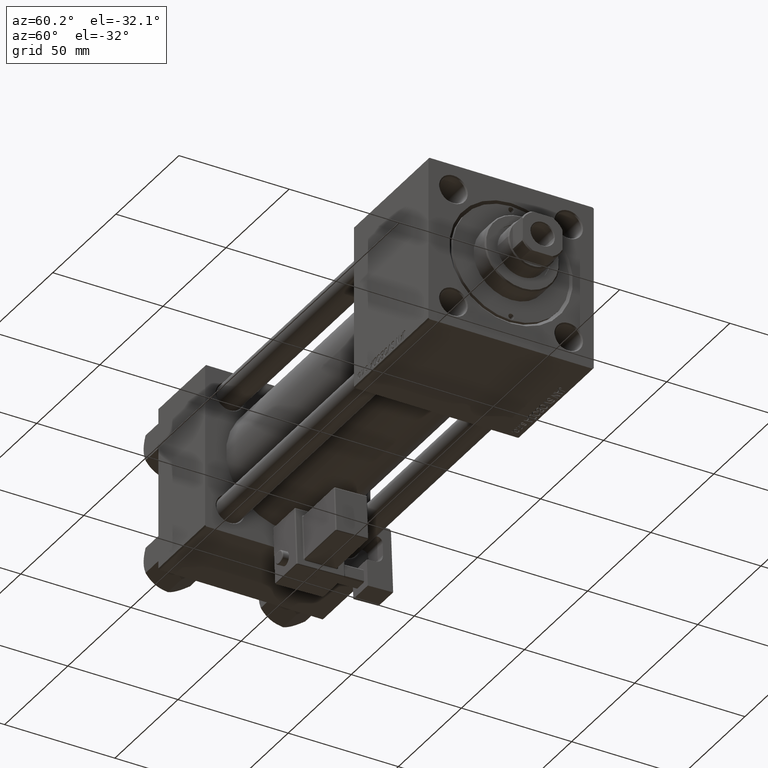
[diagram: clean part render]
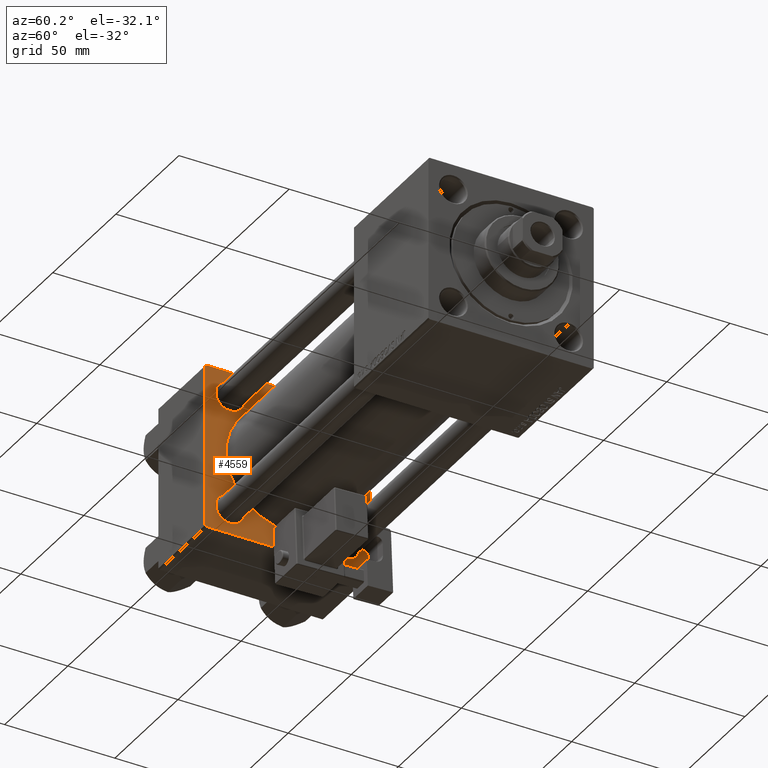
[diagram: same view with one face highlighted and labeled with its STEP entity id]
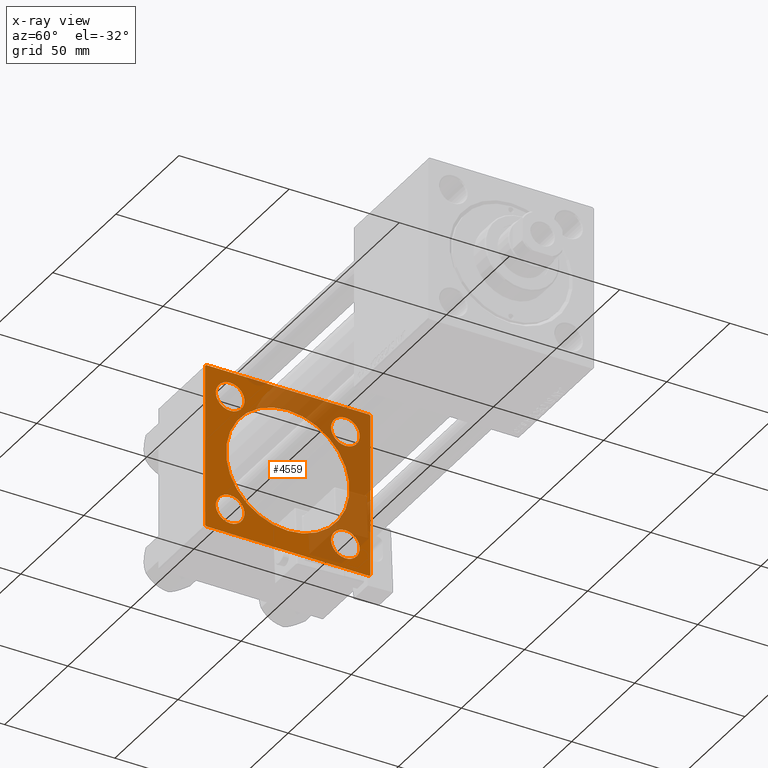
[diagram: x-ray of the same camera — body ghosted, the highlighted face saturated]
A machine part, auxiliary view. The second image highlights one B-rep face of the part: STEP entity #4559.
The next image is the same camera in x-ray: the body ghosted, the highlighted face saturated — about 45% of this face is hidden behind the body in this view.
In plain terms, the highlighted planar face has unit normal (-1, 0, 0).
Its self-contained STEP definition (entity closure, byte-faithful):
#22 = VECTOR ( 'NONE', #28432, 1000.000000000000000 ) ;
#113 = AXIS2_PLACEMENT_3D ( 'NONE', #46167, #33942, #17231 ) ;
#232 = AXIS2_PLACEMENT_3D ( 'NONE', #36494, #48733, #17365 ) ;
#714 = AXIS2_PLACEMENT_3D ( 'NONE', #33107, #45345, #29650 ) ;
#1017 = CARTESIAN_POINT ( 'NONE',  ( 37.00000000000000000, 26.14999999999999858, 19.64999999999999858 ) ) ;
#1268 = DIRECTION ( 'NONE',  ( 0.000000000000000000, 0.7071067811865524577, -0.7071067811865426878 ) ) ;
#1364 = EDGE_CURVE ( 'NONE', #38184, #28137, #29414, .T. ) ;
#1747 = FACE_BOUND ( 'NONE', #47062, .T. ) ;
#2583 = VERTEX_POINT ( 'NONE', #11659 ) ;
#2702 = DIRECTION ( 'NONE',  ( -1.000000000000000000, 0.000000000000000000, -0.000000000000000000 ) ) ;
#2709 = DIRECTION ( 'NONE',  ( -0.000000000000000000, -0.7071067811865474617, -0.7071067811865474617 ) ) ;
#2810 = VERTEX_POINT ( 'NONE', #1017 ) ;
#4559 = ADVANCED_FACE ( 'NONE', ( #29910, #34156, #38149, #1747, #33895, #13185 ), #17187, .F. ) ;
#4886 = VERTEX_POINT ( 'NONE', #11542 ) ;
#4892 = ORIENTED_EDGE ( 'NONE', *, *, #51193, .T. ) ;
#5143 = CARTESIAN_POINT ( 'NONE',  ( 37.00000000000000000, -26.14999999999999147, -26.15000000000000924 ) ) ;
#5972 = CARTESIAN_POINT ( 'NONE',  ( 37.00000000000000000, 37.49999999999999289, -37.50000000000000000 ) ) ;
#5973 = CARTESIAN_POINT ( 'NONE',  ( 37.00000000000000000, -26.14999999999999147, -19.65000000000000924 ) ) ;
#6211 = ORIENTED_EDGE ( 'NONE', *, *, #10772, .T. ) ;
#6346 = VERTEX_POINT ( 'NONE', #40910 ) ;
#6504 = DIRECTION ( 'NONE',  ( -1.000000000000000000, 0.000000000000000000, -0.000000000000000000 ) ) ;
#6531 = AXIS2_PLACEMENT_3D ( 'NONE', #43880, #34840, #14660 ) ;
#8171 = CARTESIAN_POINT ( 'NONE',  ( 37.00000000000000000, -37.00000000000002132, -37.50000000000000711 ) ) ;
#9440 = DIRECTION ( 'NONE',  ( -1.000000000000000000, 0.000000000000000000, -0.000000000000000000 ) ) ;
#9741 = ORIENTED_EDGE ( 'NONE', *, *, #33794, .T. ) ;
#9765 = CIRCLE ( 'NONE', #13138, 28.00000000000000000 ) ;
#9839 = EDGE_CURVE ( 'NONE', #6346, #2810, #42359, .T. ) ;
#9966 = DIRECTION ( 'NONE',  ( 0.000000000000000000, 0.000000000000000000, 1.000000000000000000 ) ) ;
#10597 = ORIENTED_EDGE ( 'NONE', *, *, #22348, .F. ) ;
#10772 = EDGE_CURVE ( 'NONE', #14878, #38836, #22860, .T. ) ;
#11098 = ORIENTED_EDGE ( 'NONE', *, *, #12867, .F. ) ;
#11178 = VECTOR ( 'NONE', #2709, 1000.000000000000114 ) ;
#11518 = EDGE_LOOP ( 'NONE', ( #4892, #6211 ) ) ;
#11542 = CARTESIAN_POINT ( 'NONE',  ( 37.00000000000000711, 8.269258236473784371E-16, -28.00000000000000000 ) ) ;
#11559 = VERTEX_POINT ( 'NONE', #14339 ) ;
#11646 = CARTESIAN_POINT ( 'NONE',  ( 37.00000000000000000, -37.50000000000000711, 37.49999999999999289 ) ) ;
#11659 = CARTESIAN_POINT ( 'NONE',  ( 37.00000000000000000, -37.50000000000000000, -37.00000000000003553 ) ) ;
#12867 = EDGE_CURVE ( 'NONE', #31422, #26131, #49689, .T. ) ;
#13109 = DIRECTION ( 'NONE',  ( -1.000000000000000000, 0.000000000000000000, -0.000000000000000000 ) ) ;
#13138 = AXIS2_PLACEMENT_3D ( 'NONE', #17461, #33917, #42165 ) ;
#13185 = FACE_OUTER_BOUND ( 'NONE', #22123, .T. ) ;
#13229 = LINE ( 'NONE', #20691, #51874 ) ;
#13279 = CARTESIAN_POINT ( 'NONE',  ( 37.00000000000000000, 37.49999999999999289, 37.50000000000000000 ) ) ;
#13411 = VECTOR ( 'NONE', #46243, 1000.000000000000114 ) ;
#13983 = DIRECTION ( 'NONE',  ( 0.000000000000000000, 0.000000000000000000, 1.000000000000000000 ) ) ;
#14125 = EDGE_CURVE ( 'NONE', #2583, #27314, #13229, .T. ) ;
#14339 = CARTESIAN_POINT ( 'NONE',  ( 37.00000000000000711, -2.602085213965210642E-15, 28.00000000000000000 ) ) ;
#14522 = DIRECTION ( 'NONE',  ( 0.000000000000000000, 0.000000000000000000, 1.000000000000000000 ) ) ;
#14660 = DIRECTION ( 'NONE',  ( 0.000000000000000000, 0.000000000000000000, 1.000000000000000000 ) ) ;
#14878 = VERTEX_POINT ( 'NONE', #17109 ) ;
#15253 = DIRECTION ( 'NONE',  ( 0.000000000000000000, 0.000000000000000000, 1.000000000000000000 ) ) ;
#16352 = CIRCLE ( 'NONE', #232, 6.500000000000008882 ) ;
#16432 = ORIENTED_EDGE ( 'NONE', *, *, #24050, .T. ) ;
#16644 = DIRECTION ( 'NONE',  ( 0.000000000000000000, -1.000000000000000000, -9.251858538542971581E-17 ) ) ;
#16991 = CIRCLE ( 'NONE', #48396, 6.500000000000002665 ) ;
#17109 = CARTESIAN_POINT ( 'NONE',  ( 37.00000000000000000, 26.14999999999999858, -19.65000000000000213 ) ) ;
#17187 = PLANE ( 'NONE',  #714 ) ;
#17231 = DIRECTION ( 'NONE',  ( 0.000000000000000000, 0.000000000000000000, 1.000000000000000000 ) ) ;
#17365 = DIRECTION ( 'NONE',  ( 0.000000000000000000, 0.000000000000000000, 1.000000000000000000 ) ) ;
#17461 = CARTESIAN_POINT ( 'NONE',  ( 37.00000000000000711, -2.602085213965210642E-15, 0.000000000000000000 ) ) ;
#17902 = ORIENTED_EDGE ( 'NONE', *, *, #23484, .T. ) ;
#18389 = ORIENTED_EDGE ( 'NONE', *, *, #1364, .T. ) ;
#18872 = CARTESIAN_POINT ( 'NONE',  ( 37.00000000000000000, -26.14999999999999147, -32.65000000000001279 ) ) ;
#19553 = VERTEX_POINT ( 'NONE', #21631 ) ;
#19556 = CARTESIAN_POINT ( 'NONE',  ( 37.00000000000000000, 26.14999999999999858, -26.15000000000000213 ) ) ;
#20691 = CARTESIAN_POINT ( 'NONE',  ( 37.00000000000000000, -37.00000000000002132, -37.50000000000000711 ) ) ;
#21111 = ORIENTED_EDGE ( 'NONE', *, *, #42222, .T. ) ;
#21631 = CARTESIAN_POINT ( 'NONE',  ( 37.00000000000000000, 36.99999999999999289, 37.50000000000000000 ) ) ;
#21634 = CARTESIAN_POINT ( 'NONE',  ( 37.00000000000000000, 36.99999999999999289, 37.50000000000000000 ) ) ;
#21772 = ORIENTED_EDGE ( 'NONE', *, *, #41795, .T. ) ;
#21904 = DIRECTION ( 'NONE',  ( 0.000000000000000000, -0.7071067811865474617, 0.7071067811865474617 ) ) ;
#21957 = ORIENTED_EDGE ( 'NONE', *, *, #23021, .T. ) ;
#22123 = EDGE_LOOP ( 'NONE', ( #31321, #21111, #11098, #32848, #17902, #16432, #38267, #41884 ) ) ;
#22333 = LINE ( 'NONE', #30556, #13411 ) ;
#22348 = EDGE_CURVE ( 'NONE', #11559, #4886, #39260, .T. ) ;
#22860 = CIRCLE ( 'NONE', #39860, 6.500000000000002665 ) ;
#22901 = DIRECTION ( 'NONE',  ( 0.000000000000000000, 0.000000000000000000, 1.000000000000000000 ) ) ;
#23021 = EDGE_CURVE ( 'NONE', #28137, #38184, #16352, .T. ) ;
#23484 = EDGE_CURVE ( 'NONE', #19553, #27293, #46108, .T. ) ;
#24050 = EDGE_CURVE ( 'NONE', #27293, #43942, #30864, .T. ) ;
#24527 = CARTESIAN_POINT ( 'NONE',  ( 37.00000000000000000, 26.14999999999999858, -32.65000000000000568 ) ) ;
#25014 = CARTESIAN_POINT ( 'NONE',  ( 37.00000000000000000, -37.50000000000000711, 36.99999999999999289 ) ) ;
#25786 = VECTOR ( 'NONE', #27851, 1000.000000000000000 ) ;
#26131 = VERTEX_POINT ( 'NONE', #30501 ) ;
#27293 = VERTEX_POINT ( 'NONE', #41633 ) ;
#27314 = VERTEX_POINT ( 'NONE', #8171 ) ;
#27851 = DIRECTION ( 'NONE',  ( 0.000000000000000000, 9.251858538542971581E-17, -1.000000000000000000 ) ) ;
#28137 = VERTEX_POINT ( 'NONE', #48112 ) ;
#28432 = DIRECTION ( 'NONE',  ( 0.000000000000000000, 0.000000000000000000, -1.000000000000000000 ) ) ;
#28799 = AXIS2_PLACEMENT_3D ( 'NONE', #50389, #41374, #13983 ) ;
#29131 = EDGE_CURVE ( 'NONE', #43942, #2583, #44865, .T. ) ;
#29414 = CIRCLE ( 'NONE', #6531, 6.500000000000008882 ) ;
#29650 = DIRECTION ( 'NONE',  ( -0.000000000000000000, 0.000000000000000000, 1.000000000000000000 ) ) ;
#29910 = FACE_BOUND ( 'NONE', #46877, .T. ) ;
#30501 = CARTESIAN_POINT ( 'NONE',  ( 37.00000000000000000, 37.49999999999999289, -36.99999999999998579 ) ) ;
#30556 = CARTESIAN_POINT ( 'NONE',  ( 37.00000000000000000, 37.49999999999999289, -36.99999999999998579 ) ) ;
#30864 = LINE ( 'NONE', #51860, #11178 ) ;
#31227 = DIRECTION ( 'NONE',  ( -1.000000000000000000, 0.000000000000000000, -0.000000000000000000 ) ) ;
#31321 = ORIENTED_EDGE ( 'NONE', *, *, #36072, .F. ) ;
#31422 = VERTEX_POINT ( 'NONE', #39185 ) ;
#32848 = ORIENTED_EDGE ( 'NONE', *, *, #35307, .T. ) ;
#33107 = CARTESIAN_POINT ( 'NONE',  ( 37.00000000000000000, 0.000000000000000000, 0.000000000000000000 ) ) ;
#33794 = EDGE_CURVE ( 'NONE', #2810, #6346, #36132, .T. ) ;
#33884 = CARTESIAN_POINT ( 'NONE',  ( 37.00000000000000000, 37.49999999999999289, 37.50000000000000000 ) ) ;
#33895 = FACE_BOUND ( 'NONE', #49686, .T. ) ;
#33917 = DIRECTION ( 'NONE',  ( 1.000000000000000000, -0.000000000000000000, 0.000000000000000000 ) ) ;
#33942 = DIRECTION ( 'NONE',  ( 1.000000000000000000, -0.000000000000000000, 0.000000000000000000 ) ) ;
#34156 = FACE_BOUND ( 'NONE', #11518, .T. ) ;
#34840 = DIRECTION ( 'NONE',  ( -1.000000000000000000, 0.000000000000000000, -0.000000000000000000 ) ) ;
#35307 = EDGE_CURVE ( 'NONE', #31422, #19553, #50597, .T. ) ;
#36072 = EDGE_CURVE ( 'NONE', #50867, #27314, #50340, .T. ) ;
#36132 = CIRCLE ( 'NONE', #38677, 6.500000000000008882 ) ;
#36372 = EDGE_LOOP ( 'NONE', ( #21957, #18389 ) ) ;
#36494 = CARTESIAN_POINT ( 'NONE',  ( 37.00000000000000000, -26.14999999999999147, 26.15000000000000924 ) ) ;
#36637 = VECTOR ( 'NONE', #16644, 1000.000000000000000 ) ;
#37137 = ORIENTED_EDGE ( 'NONE', *, *, #49929, .F. ) ;
#38149 = FACE_BOUND ( 'NONE', #36372, .T. ) ;
#38184 = VERTEX_POINT ( 'NONE', #52364 ) ;
#38267 = ORIENTED_EDGE ( 'NONE', *, *, #29131, .T. ) ;
#38444 = ORIENTED_EDGE ( 'NONE', *, *, #9839, .T. ) ;
#38585 = CARTESIAN_POINT ( 'NONE',  ( 37.00000000000000000, -26.14999999999999147, -26.15000000000000924 ) ) ;
#38677 = AXIS2_PLACEMENT_3D ( 'NONE', #45844, #9440, #9966 ) ;
#38836 = VERTEX_POINT ( 'NONE', #24527 ) ;
#38869 = CIRCLE ( 'NONE', #43126, 6.500000000000002665 ) ;
#39185 = CARTESIAN_POINT ( 'NONE',  ( 37.00000000000000000, 37.49999999999999289, 37.00000000000000000 ) ) ;
#39260 = CIRCLE ( 'NONE', #113, 28.00000000000000000 ) ;
#39860 = AXIS2_PLACEMENT_3D ( 'NONE', #19556, #31227, #14522 ) ;
#40910 = CARTESIAN_POINT ( 'NONE',  ( 37.00000000000000000, 26.14999999999999858, 32.65000000000001279 ) ) ;
#41297 = VECTOR ( 'NONE', #45568, 1000.000000000000000 ) ;
#41374 = DIRECTION ( 'NONE',  ( -1.000000000000000000, 0.000000000000000000, -0.000000000000000000 ) ) ;
#41633 = CARTESIAN_POINT ( 'NONE',  ( 37.00000000000000000, -37.00000000000000711, 37.49999999999999289 ) ) ;
#41795 = EDGE_CURVE ( 'NONE', #42369, #47349, #38869, .T. ) ;
#41884 = ORIENTED_EDGE ( 'NONE', *, *, #14125, .T. ) ;
#42165 = DIRECTION ( 'NONE',  ( 0.000000000000000000, 0.000000000000000000, 1.000000000000000000 ) ) ;
#42222 = EDGE_CURVE ( 'NONE', #50867, #26131, #22333, .T. ) ;
#42359 = CIRCLE ( 'NONE', #28799, 6.500000000000008882 ) ;
#42369 = VERTEX_POINT ( 'NONE', #18872 ) ;
#42969 = CARTESIAN_POINT ( 'NONE',  ( 37.00000000000000000, 36.99999999999997868, -37.50000000000000000 ) ) ;
#43126 = AXIS2_PLACEMENT_3D ( 'NONE', #5143, #13109, #49261 ) ;
#43880 = CARTESIAN_POINT ( 'NONE',  ( 37.00000000000000000, -26.14999999999999147, 26.15000000000000924 ) ) ;
#43942 = VERTEX_POINT ( 'NONE', #25014 ) ;
#44636 = CIRCLE ( 'NONE', #51411, 6.500000000000002665 ) ;
#44865 = LINE ( 'NONE', #11646, #25786 ) ;
#45345 = DIRECTION ( 'NONE',  ( -1.000000000000000000, 0.000000000000000000, -0.000000000000000000 ) ) ;
#45568 = DIRECTION ( 'NONE',  ( 0.000000000000000000, -1.000000000000000000, -9.251858538542972814E-17 ) ) ;
#45844 = CARTESIAN_POINT ( 'NONE',  ( 37.00000000000000000, 26.14999999999999858, 26.15000000000000213 ) ) ;
#46108 = LINE ( 'NONE', #33884, #36637 ) ;
#46167 = CARTESIAN_POINT ( 'NONE',  ( 37.00000000000000711, -2.602085213965210642E-15, 0.000000000000000000 ) ) ;
#46243 = DIRECTION ( 'NONE',  ( -0.000000000000000000, 0.7071067811865474617, 0.7071067811865474617 ) ) ;
#46383 = VECTOR ( 'NONE', #21904, 1000.000000000000114 ) ;
#46877 = EDGE_LOOP ( 'NONE', ( #21772, #47715 ) ) ;
#47062 = EDGE_LOOP ( 'NONE', ( #9741, #38444 ) ) ;
#47349 = VERTEX_POINT ( 'NONE', #5973 ) ;
#47660 = CARTESIAN_POINT ( 'NONE',  ( 37.00000000000000000, 26.14999999999999858, -26.15000000000000213 ) ) ;
#47671 = EDGE_CURVE ( 'NONE', #47349, #42369, #16991, .T. ) ;
#47715 = ORIENTED_EDGE ( 'NONE', *, *, #47671, .T. ) ;
#48112 = CARTESIAN_POINT ( 'NONE',  ( 37.00000000000000000, -26.14999999999999147, 19.65000000000000213 ) ) ;
#48396 = AXIS2_PLACEMENT_3D ( 'NONE', #38585, #2702, #22901 ) ;
#48733 = DIRECTION ( 'NONE',  ( -1.000000000000000000, 0.000000000000000000, -0.000000000000000000 ) ) ;
#49261 = DIRECTION ( 'NONE',  ( 0.000000000000000000, 0.000000000000000000, 1.000000000000000000 ) ) ;
#49686 = EDGE_LOOP ( 'NONE', ( #10597, #37137 ) ) ;
#49689 = LINE ( 'NONE', #13279, #22 ) ;
#49929 = EDGE_CURVE ( 'NONE', #4886, #11559, #9765, .T. ) ;
#50340 = LINE ( 'NONE', #5972, #41297 ) ;
#50389 = CARTESIAN_POINT ( 'NONE',  ( 37.00000000000000000, 26.14999999999999858, 26.15000000000000213 ) ) ;
#50597 = LINE ( 'NONE', #21634, #46383 ) ;
#50867 = VERTEX_POINT ( 'NONE', #42969 ) ;
#51193 = EDGE_CURVE ( 'NONE', #38836, #14878, #44636, .T. ) ;
#51411 = AXIS2_PLACEMENT_3D ( 'NONE', #47660, #6504, #15253 ) ;
#51860 = CARTESIAN_POINT ( 'NONE',  ( 37.00000000000000000, -37.50000000000000711, 36.99999999999999289 ) ) ;
#51874 = VECTOR ( 'NONE', #1268, 1000.000000000000000 ) ;
#52364 = CARTESIAN_POINT ( 'NONE',  ( 37.00000000000000000, -26.14999999999999147, 32.65000000000001990 ) ) ;